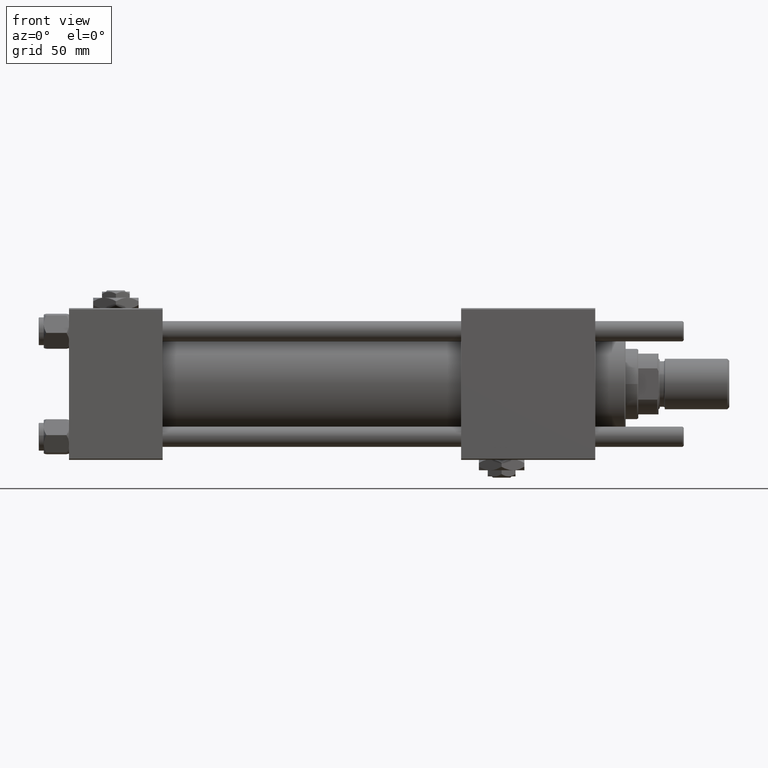
[diagram: clean part render]
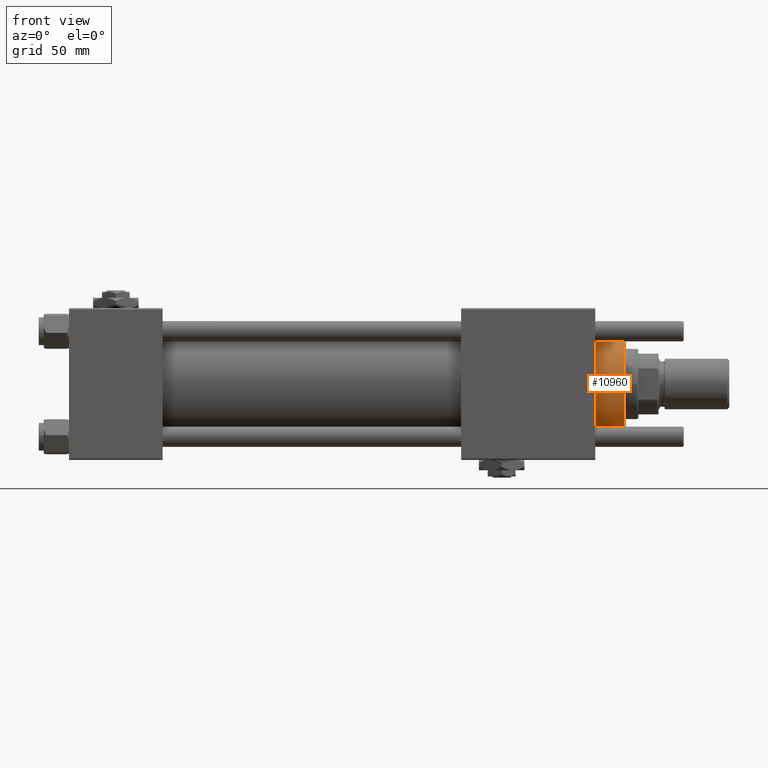
[diagram: same view with one face highlighted and labeled with its STEP entity id]
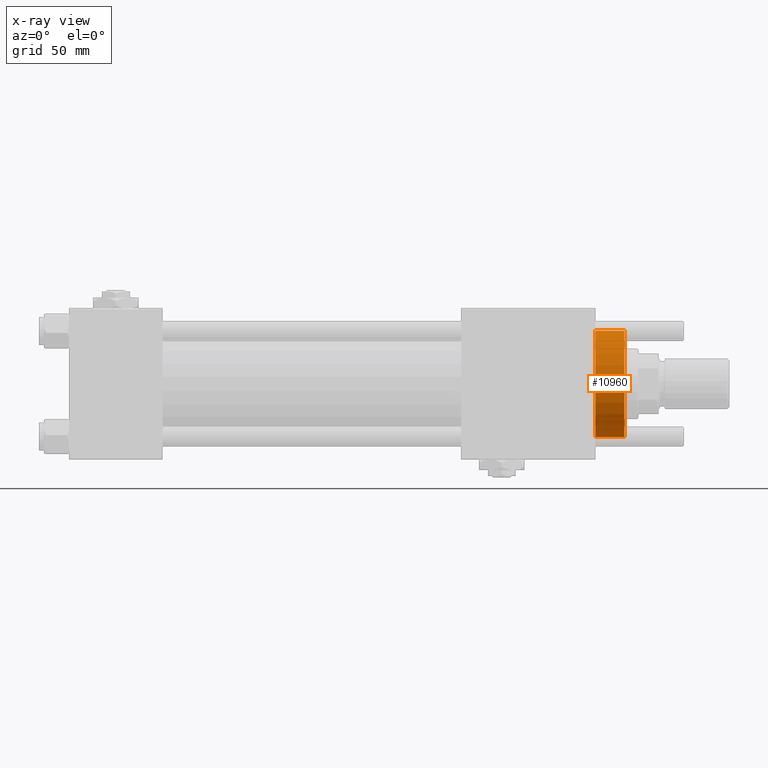
[diagram: x-ray of the same camera — body ghosted, the highlighted face saturated]
A machine part, front view. The second image highlights one B-rep face of the part: STEP entity #10960.
The next image is the same camera in x-ray: the body ghosted, the highlighted face saturated — about 0% of this face is hidden behind the body in this view.
In plain terms, the highlighted cylindrical surface (partial cylindrical patch) has radius 21 mm, axis along (-1, -0, 0).
Its self-contained STEP definition (entity closure, byte-faithful):
#6195 = CARTESIAN_POINT ( 'NONE',  ( 0.000000000000000000, 0.000000000000000000, 40.19999999999998863 ) ) ;
#7876 = EDGE_CURVE ( 'NONE', #17449, #17839, #18902, .T. ) ;
#8143 = VERTEX_POINT ( 'NONE', #49784 ) ;
#10960 = ADVANCED_FACE ( 'NONE', ( #30646 ), #30347, .T. ) ;
#12502 = AXIS2_PLACEMENT_3D ( 'NONE', #6195, #42198, #28106 ) ;
#12542 = AXIS2_PLACEMENT_3D ( 'NONE', #23471, #30035, #21031 ) ;
#13828 = CARTESIAN_POINT ( 'NONE',  ( 21.00000000000000000, 2.571758278209441661E-15, 40.70000000000000284 ) ) ;
#15356 = CIRCLE ( 'NONE', #12502, 21.00000000000000000 ) ;
#15838 = ORIENTED_EDGE ( 'NONE', *, *, #21144, .T. ) ;
#15951 = DIRECTION ( 'NONE',  ( -1.000000000000000000, 0.000000000000000000, 0.000000000000000000 ) ) ;
#17449 = VERTEX_POINT ( 'NONE', #45209 ) ;
#17839 = VERTEX_POINT ( 'NONE', #58559 ) ;
#18902 = LINE ( 'NONE', #28201, #19038 ) ;
#19038 = VECTOR ( 'NONE', #46506, 1000.000000000000000 ) ;
#21031 = DIRECTION ( 'NONE',  ( 1.000000000000000000, 0.000000000000000000, 0.000000000000000000 ) ) ;
#21144 = EDGE_CURVE ( 'NONE', #40458, #17449, #15356, .T. ) ;
#22437 = EDGE_CURVE ( 'NONE', #17839, #8143, #48984, .T. ) ;
#23471 = CARTESIAN_POINT ( 'NONE',  ( 0.000000000000000000, 0.000000000000000000, 28.69999999999999929 ) ) ;
#27348 = LINE ( 'NONE', #13828, #51143 ) ;
#28106 = DIRECTION ( 'NONE',  ( 1.000000000000000000, 0.000000000000000000, 0.000000000000000000 ) ) ;
#28201 = CARTESIAN_POINT ( 'NONE',  ( -21.00000000000000000, 0.000000000000000000, 40.70000000000000284 ) ) ;
#30035 = DIRECTION ( 'NONE',  ( 0.000000000000000000, 0.000000000000000000, 1.000000000000000000 ) ) ;
#30347 = CYLINDRICAL_SURFACE ( 'NONE', #30594, 21.00000000000000000 ) ;
#30594 = AXIS2_PLACEMENT_3D ( 'NONE', #57669, #57081, #15951 ) ;
#30646 = FACE_OUTER_BOUND ( 'NONE', #50733, .T. ) ;
#35776 = EDGE_CURVE ( 'NONE', #40458, #8143, #27348, .T. ) ;
#36914 = ORIENTED_EDGE ( 'NONE', *, *, #7876, .T. ) ;
#40458 = VERTEX_POINT ( 'NONE', #45271 ) ;
#40530 = ORIENTED_EDGE ( 'NONE', *, *, #22437, .T. ) ;
#42198 = DIRECTION ( 'NONE',  ( 0.000000000000000000, 0.000000000000000000, -1.000000000000000000 ) ) ;
#42897 = ORIENTED_EDGE ( 'NONE', *, *, #35776, .F. ) ;
#45209 = CARTESIAN_POINT ( 'NONE',  ( -21.00000000000000000, 0.000000000000000000, 40.19999999999998863 ) ) ;
#45271 = CARTESIAN_POINT ( 'NONE',  ( 21.00000000000000000, 2.571758278209441661E-15, 40.19999999999998863 ) ) ;
#46506 = DIRECTION ( 'NONE',  ( -0.000000000000000000, -0.000000000000000000, -1.000000000000000000 ) ) ;
#48984 = CIRCLE ( 'NONE', #12542, 21.00000000000000000 ) ;
#49784 = CARTESIAN_POINT ( 'NONE',  ( 21.00000000000000000, 2.571758278209441661E-15, 28.69999999999999929 ) ) ;
#50733 = EDGE_LOOP ( 'NONE', ( #42897, #15838, #36914, #40530 ) ) ;
#51143 = VECTOR ( 'NONE', #54958, 1000.000000000000000 ) ;
#54958 = DIRECTION ( 'NONE',  ( -0.000000000000000000, -0.000000000000000000, -1.000000000000000000 ) ) ;
#57081 = DIRECTION ( 'NONE',  ( -0.000000000000000000, -0.000000000000000000, -1.000000000000000000 ) ) ;
#57669 = CARTESIAN_POINT ( 'NONE',  ( 0.000000000000000000, 0.000000000000000000, 40.70000000000000284 ) ) ;
#58559 = CARTESIAN_POINT ( 'NONE',  ( -21.00000000000000000, 0.000000000000000000, 28.69999999999999929 ) ) ;